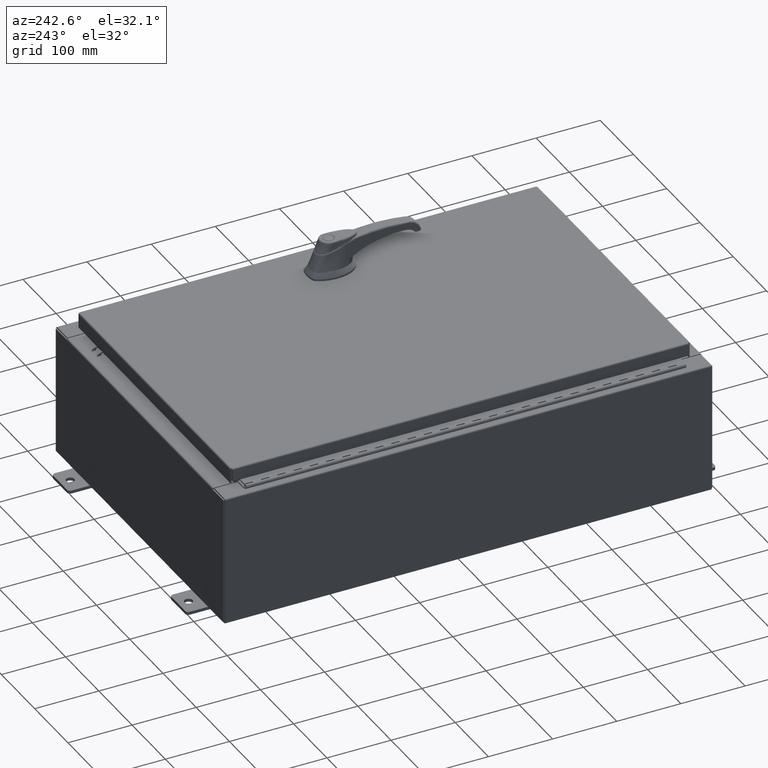
[diagram: clean part render]
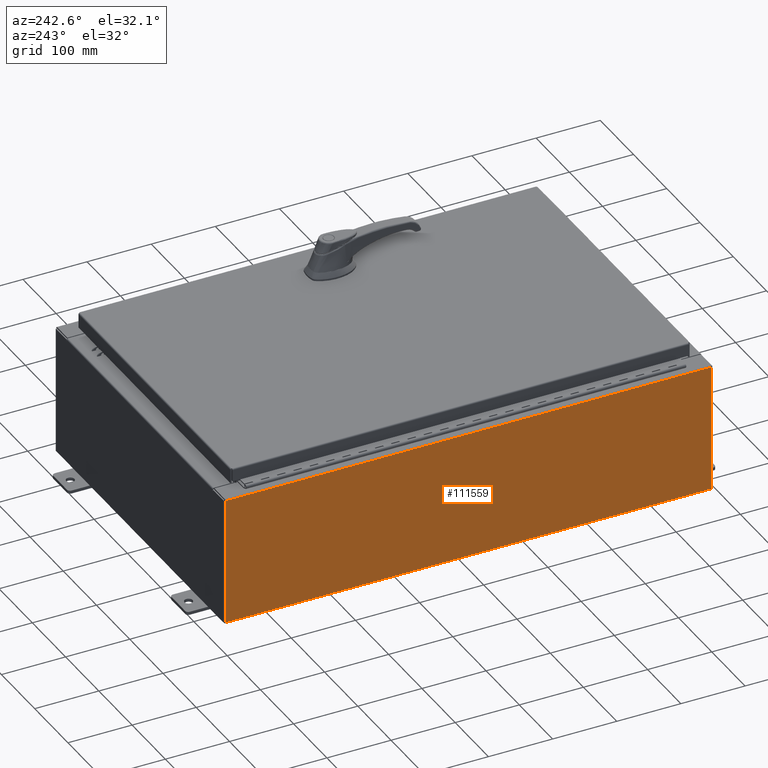
[diagram: same view with one face highlighted and labeled with its STEP entity id]
A machine part, auxiliary view. The second image highlights one B-rep face of the part: STEP entity #111559.
In plain terms, the highlighted planar face has unit normal (1, 0, 0).
Its self-contained STEP definition (entity closure, byte-faithful):
#2145 = FACE_OUTER_BOUND ( 'NONE', #51552, .T. ) ;
#2378 = VECTOR ( 'NONE', #81826, 39.37007874015748100 ) ;
#3447 = EDGE_CURVE ( 'NONE', #46972, #84844, #50983, .T. ) ;
#3757 = ORIENTED_EDGE ( 'NONE', *, *, #23987, .T. ) ;
#8092 = CARTESIAN_POINT ( 'NONE',  ( -10.00000000000000000, 0.0000000000000000000, -3.610957538630361200E-014 ) ) ;
#11456 = EDGE_CURVE ( 'NONE', #98558, #26762, #94559, .T. ) ;
#14073 = VECTOR ( 'NONE', #117961, 39.37007874015748100 ) ;
#16757 = EDGE_CURVE ( 'NONE', #46972, #26762, #86879, .T. ) ;
#17262 = DIRECTION ( 'NONE',  ( 1.000000000000000000, 0.0000000000000000000, 3.584876173029202900E-015 ) ) ;
#17668 = VECTOR ( 'NONE', #37072, 39.37007874015748100 ) ;
#19107 = CARTESIAN_POINT ( 'NONE',  ( -10.00000000000002800, -14.92529999999999600, 7.837599999999999200 ) ) ;
#20565 = LINE ( 'NONE', #19107, #17668 ) ;
#23987 = EDGE_CURVE ( 'NONE', #84844, #98558, #20565, .T. ) ;
#26762 = VERTEX_POINT ( 'NONE', #84856 ) ;
#37072 = DIRECTION ( 'NONE',  ( 0.0000000000000000000, 1.000000000000000000, 0.0000000000000000000 ) ) ;
#43273 = ORIENTED_EDGE ( 'NONE', *, *, #11456, .T. ) ;
#46972 = VERTEX_POINT ( 'NONE', #84350 ) ;
#48873 = VECTOR ( 'NONE', #59094, 39.37007874015748100 ) ;
#49969 = ORIENTED_EDGE ( 'NONE', *, *, #16757, .F. ) ;
#50983 = LINE ( 'NONE', #63532, #2378 ) ;
#51138 = ORIENTED_EDGE ( 'NONE', *, *, #3447, .T. ) ;
#51552 = EDGE_LOOP ( 'NONE', ( #3757, #43273, #49969, #51138 ) ) ;
#58314 = CARTESIAN_POINT ( 'NONE',  ( -10.00000000000000000, 14.92530000000000500, -3.610957538630361200E-014 ) ) ;
#59094 = DIRECTION ( 'NONE',  ( 3.584876173029202900E-015, 0.0000000000000000000, -1.000000000000000000 ) ) ;
#62793 = PLANE ( 'NONE',  #69582 ) ;
#63172 = CARTESIAN_POINT ( 'NONE',  ( -10.00000000000000000, 14.92530000000000500, 0.01299999999999984700 ) ) ;
#63189 = CARTESIAN_POINT ( 'NONE',  ( -10.00000000000002800, 14.92530000000000500, 7.837599999999999200 ) ) ;
#63532 = CARTESIAN_POINT ( 'NONE',  ( -10.00000000000000000, -14.92529999999999600, -3.610957538630361200E-014 ) ) ;
#69582 = AXIS2_PLACEMENT_3D ( 'NONE', #8092, #17262, #81091 ) ;
#81091 = DIRECTION ( 'NONE',  ( 3.584876173029202900E-015, 0.0000000000000000000, -1.000000000000000000 ) ) ;
#81826 = DIRECTION ( 'NONE',  ( -3.584876173029202900E-015, 0.0000000000000000000, 1.000000000000000000 ) ) ;
#84350 = CARTESIAN_POINT ( 'NONE',  ( -10.00000000000000000, -14.92529999999999600, 0.01299999999999984700 ) ) ;
#84844 = VERTEX_POINT ( 'NONE', #100021 ) ;
#84856 = CARTESIAN_POINT ( 'NONE',  ( -10.00000000000000000, 14.92530000000000500, 0.01299999999999983600 ) ) ;
#86879 = LINE ( 'NONE', #63172, #14073 ) ;
#94559 = LINE ( 'NONE', #58314, #48873 ) ;
#98558 = VERTEX_POINT ( 'NONE', #63189 ) ;
#100021 = CARTESIAN_POINT ( 'NONE',  ( -10.00000000000002800, -14.92529999999999600, 7.837599999999999200 ) ) ;
#111559 = ADVANCED_FACE ( 'NONE', ( #2145 ), #62793, .F. ) ;
#117961 = DIRECTION ( 'NONE',  ( -0.0000000000000000000, 1.000000000000000000, -0.0000000000000000000 ) ) ;